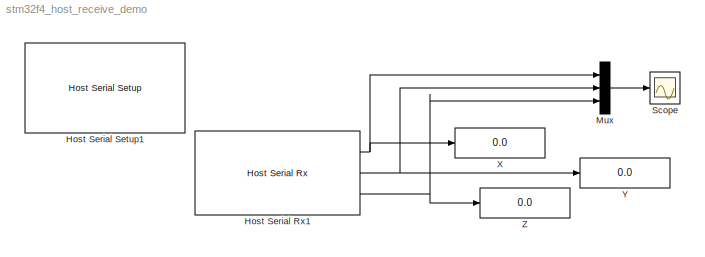
MODEL stm32f4_host_receive_demo
KIND model
BLOCK [Reference] Host Serial Rx1  REF=amg_usbconverter_n_connect_lib/Host Serial Rx
  Ports = [0, 3]
  SourceBlock = amg_usbconverter_n_connect_lib/Host Serial Rx
  SourceType = amg_usbconverter_n_connect
  asciiformat = 'OutX=%d,OutY=%d,OutZ=%d'
  autoport = '<empty>'
  baudrate = 115200
  binheader = '7E 7E'
  binterminator = '03 03'
  blockid = HostSerialRx1
  cinputportlabel = 0
  compat = 0
  conf = rx
  coutputportlabel = A
  databits = 8
  enablecustomportlabel = off
  enableinitialvalues = off
  flowcontrol = None
  initialvalues = []
  inputportlabel = {}
  inputporttype = []
  inputportwidth = []
  optionstring = []
  outputportlabel = {'(int32) %d','(int32) %d','(int32) %d'}
  outputporttype = [6 6 6]
  outputportwidth = [1 1 1]
  packetmode = Ascii
  parity = None
  port = <auto>
  portpinstr = 0
  porttype_double = 0
  porttype_int16 = 0
  porttype_int32 = 0
  porttype_int8 = 0
  porttype_single = 0
  porttype_uint16 = 0
  porttype_uint32 = 2
  porttype_uint8 = 0
  rx_asciiterminator = CRLF (0x0D 0x0A - \"<path>")
  sampletime = -1
  stopbit = 1
  timeout = 5
  transfer = Blocking
  tx_asciiterminator = CRLF (0x0D 0x0A - \"<path>")
BLOCK [Reference] Host Serial Setup1  REF=amg_usbconverter_n_connect_lib/Host Serial Setup
  Ports = []
  SourceBlock = amg_usbconverter_n_connect_lib/Host Serial Setup
  SourceType = amg_usbconverter_n_connect
  asciiformat = '%d %u %x'
  autoport = '<empty>'
  baudrate = 115200
  binheader = '7E 7E'
  binterminator = '03 03'
  blockid = HostSerialSetup1
  cinputportlabel = 0
  compat = 0
  conf = setup
  coutputportlabel = A
  databits = 8
  enablecustomportlabel = off
  flowcontrol = None
  initialvalues = []
  inputportlabel = {}
  inputporttype = []
  inputportwidth = []
  optionstring = []
  outputportlabel = {}
  outputporttype = []
  outputportwidth = []
  packetmode = Binary
  parity = None
  port = <auto>
  portpinstr = 0
  porttype_double = 0
  porttype_int16 = 0
  porttype_int32 = 0
  porttype_int8 = 0
  porttype_single = 1
  porttype_uint16 = 0
  porttype_uint32 = 2
  porttype_uint8 = 0
  rx_asciiterminator = CRLF (0x0D 0x0A - \"<path>")
  sampletime = 0.02
  stopbit = 1
  timeout = 2
  transfer = Blocking
  tx_asciiterminator = CRLF (0x0D 0x0A - \"<path>")
BLOCK [Mux] Mux
  DisplayOption = bar
  Inputs = 3
  Ports = [3, 1]
BLOCK [Scope] Scope
  DataFormat = StructureWithTime
  Floating = off
  NumInputPorts = 1
  Ports = [1]
  SampleTime = 0
  YMax = 60
  YMin = -30
BLOCK [Display] X
  Decimation = 1
  Lockdown = off
  Ports = [1]
BLOCK [Display] Y
  Decimation = 1
  Lockdown = off
  Ports = [1]
BLOCK [Display] Z
  Decimation = 1
  Lockdown = off
  Ports = [1]
NET Host Serial Rx1:1 -> Mux:1, X:1
NET Host Serial Rx1:2 -> Mux:2, Y:1
NET Host Serial Rx1:3 -> Mux:3, Z:1
LINE Mux:1 -> Scope:1
note: NET lines group one-source signal fan-out (src -> all destinations, sorted); 1:1 wires keep LINE
note: 4 file-system paths scrubbed to <path> (not preserved elsewhere — flat text is the only slx artifact)
